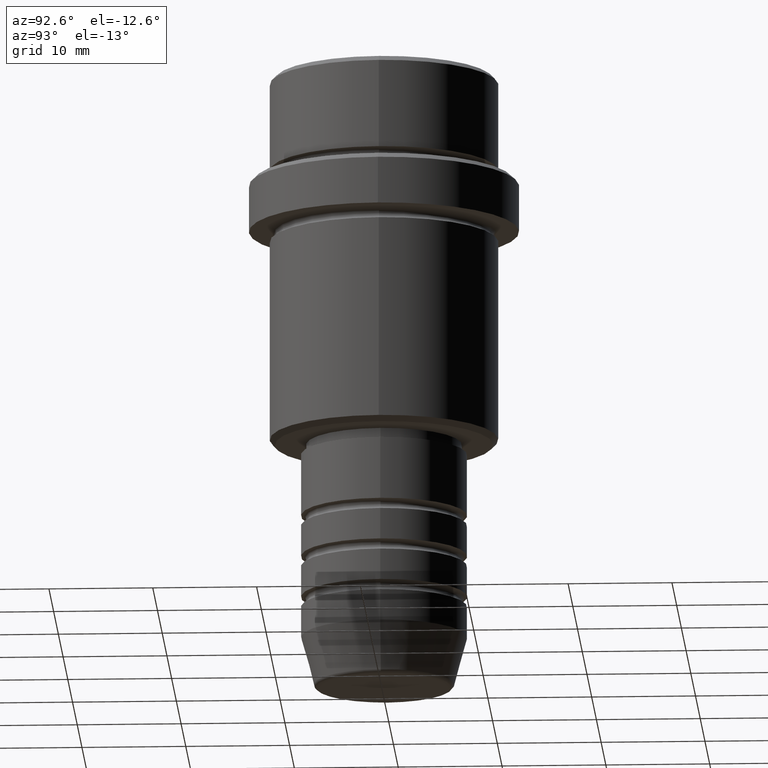
[diagram: clean part render]
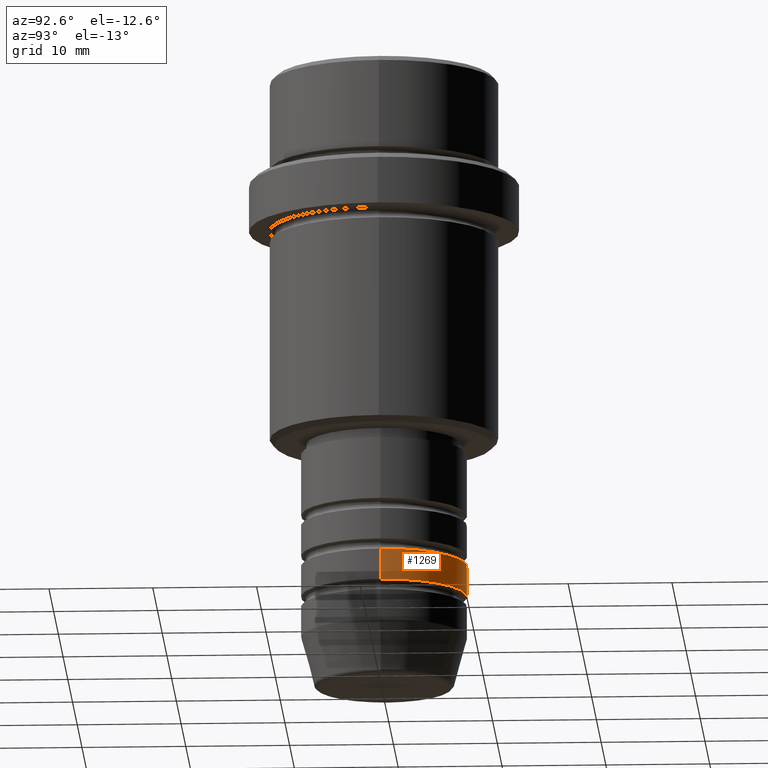
[diagram: same view with one face highlighted and labeled with its STEP entity id]
A machine part, auxiliary view. The second image highlights one B-rep face of the part: STEP entity #1269.
In plain terms, the highlighted cylindrical surface (partial cylindrical patch) has radius 8 mm, axis along (-0, -0, 1).
Its self-contained STEP definition (entity closure, byte-faithful):
#43 = AXIS2_PLACEMENT_3D ( 'NONE', #186, #625, #1289 ) ;
#63 = VERTEX_POINT ( 'NONE', #978 ) ;
#71 = LINE ( 'NONE', #1162, #369 ) ;
#72 = CARTESIAN_POINT ( 'NONE',  ( 0.000000000000000000, 0.000000000000000000, -47.99999999999989342 ) ) ;
#148 = CARTESIAN_POINT ( 'NONE',  ( 0.000000000000000000, 0.000000000000000000, -50.99999999999988631 ) ) ;
#151 = LINE ( 'NONE', #825, #703 ) ;
#186 = CARTESIAN_POINT ( 'NONE',  ( 0.000000000000000000, 0.000000000000000000, 0.000000000000000000 ) ) ;
#369 = VECTOR ( 'NONE', #704, 1000.000000000000000 ) ;
#377 = DIRECTION ( 'NONE',  ( -0.000000000000000000, -0.000000000000000000, 1.000000000000000000 ) ) ;
#468 = VERTEX_POINT ( 'NONE', #559 ) ;
#507 = ORIENTED_EDGE ( 'NONE', *, *, #760, .T. ) ;
#510 = EDGE_CURVE ( 'NONE', #468, #824, #151, .T. ) ;
#559 = CARTESIAN_POINT ( 'NONE',  ( -8.000000000000000000, 9.797174393178825657E-16, -50.99999999999988631 ) ) ;
#566 = ORIENTED_EDGE ( 'NONE', *, *, #1360, .F. ) ;
#612 = FACE_OUTER_BOUND ( 'NONE', #1373, .T. ) ;
#625 = DIRECTION ( 'NONE',  ( -0.000000000000000000, -0.000000000000000000, 1.000000000000000000 ) ) ;
#678 = CARTESIAN_POINT ( 'NONE',  ( -8.000000000000000000, 9.797174393178825657E-16, -47.99999999999989342 ) ) ;
#697 = CARTESIAN_POINT ( 'NONE',  ( 8.000000000000000000, 0.000000000000000000, -50.99999999999988631 ) ) ;
#703 = VECTOR ( 'NONE', #1264, 1000.000000000000000 ) ;
#704 = DIRECTION ( 'NONE',  ( -0.000000000000000000, -0.000000000000000000, 1.000000000000000000 ) ) ;
#733 = DIRECTION ( 'NONE',  ( -0.000000000000000000, -0.000000000000000000, 1.000000000000000000 ) ) ;
#747 = CIRCLE ( 'NONE', #932, 8.000000000000000000 ) ;
#760 = EDGE_CURVE ( 'NONE', #803, #468, #747, .T. ) ;
#803 = VERTEX_POINT ( 'NONE', #697 ) ;
#824 = VERTEX_POINT ( 'NONE', #678 ) ;
#825 = CARTESIAN_POINT ( 'NONE',  ( -8.000000000000000000, 9.797174393178825657E-16, 0.000000000000000000 ) ) ;
#902 = DIRECTION ( 'NONE',  ( 1.000000000000000000, 0.000000000000000000, 0.000000000000000000 ) ) ;
#932 = AXIS2_PLACEMENT_3D ( 'NONE', #148, #377, #902 ) ;
#978 = CARTESIAN_POINT ( 'NONE',  ( 8.000000000000000000, 0.000000000000000000, -47.99999999999989342 ) ) ;
#980 = AXIS2_PLACEMENT_3D ( 'NONE', #72, #733, #1154 ) ;
#1065 = EDGE_CURVE ( 'NONE', #803, #63, #71, .T. ) ;
#1066 = ORIENTED_EDGE ( 'NONE', *, *, #510, .T. ) ;
#1145 = ORIENTED_EDGE ( 'NONE', *, *, #1065, .F. ) ;
#1154 = DIRECTION ( 'NONE',  ( 1.000000000000000000, 0.000000000000000000, 0.000000000000000000 ) ) ;
#1162 = CARTESIAN_POINT ( 'NONE',  ( 8.000000000000000000, 0.000000000000000000, 0.000000000000000000 ) ) ;
#1264 = DIRECTION ( 'NONE',  ( -0.000000000000000000, -0.000000000000000000, 1.000000000000000000 ) ) ;
#1269 = ADVANCED_FACE ( 'NONE', ( #612 ), #1283, .T. ) ;
#1282 = CIRCLE ( 'NONE', #980, 8.000000000000000000 ) ;
#1283 = CYLINDRICAL_SURFACE ( 'NONE', #43, 8.000000000000000000 ) ;
#1289 = DIRECTION ( 'NONE',  ( 1.000000000000000000, 0.000000000000000000, 0.000000000000000000 ) ) ;
#1360 = EDGE_CURVE ( 'NONE', #63, #824, #1282, .T. ) ;
#1373 = EDGE_LOOP ( 'NONE', ( #507, #1066, #566, #1145 ) ) ;